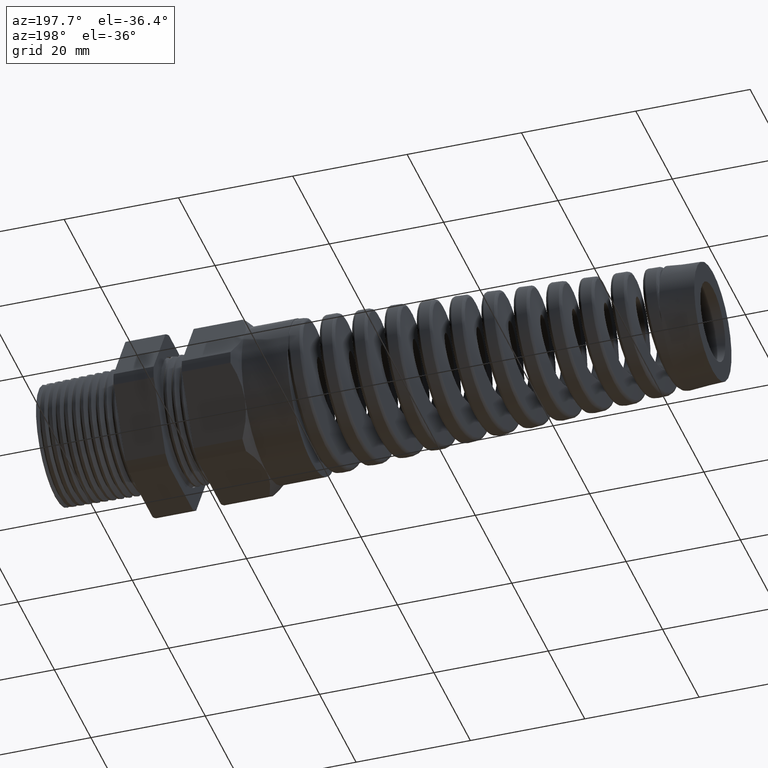
[diagram: clean part render]
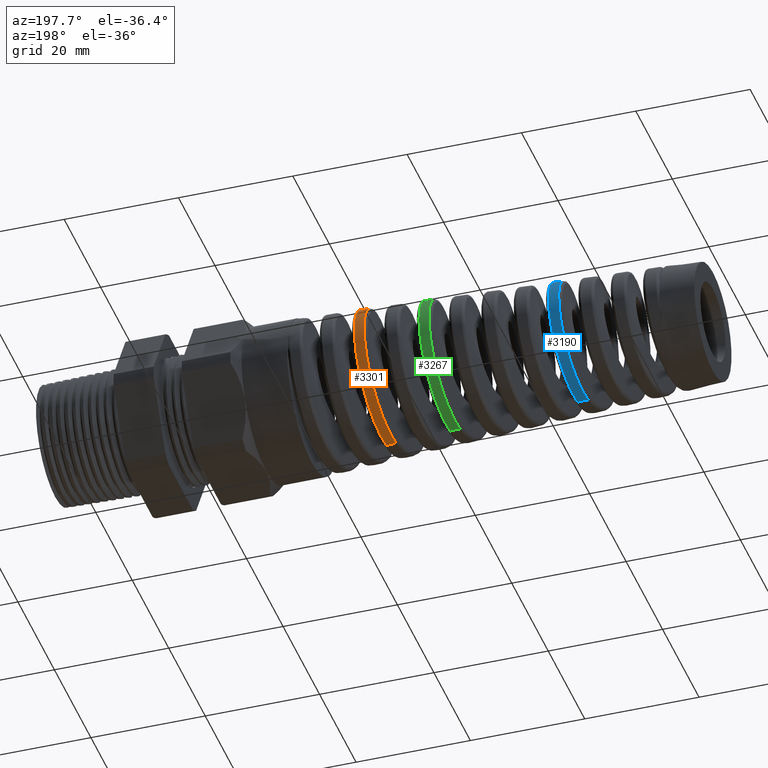
[diagram: same view with three faces highlighted in distinct colors, each labeled with its STEP entity id]
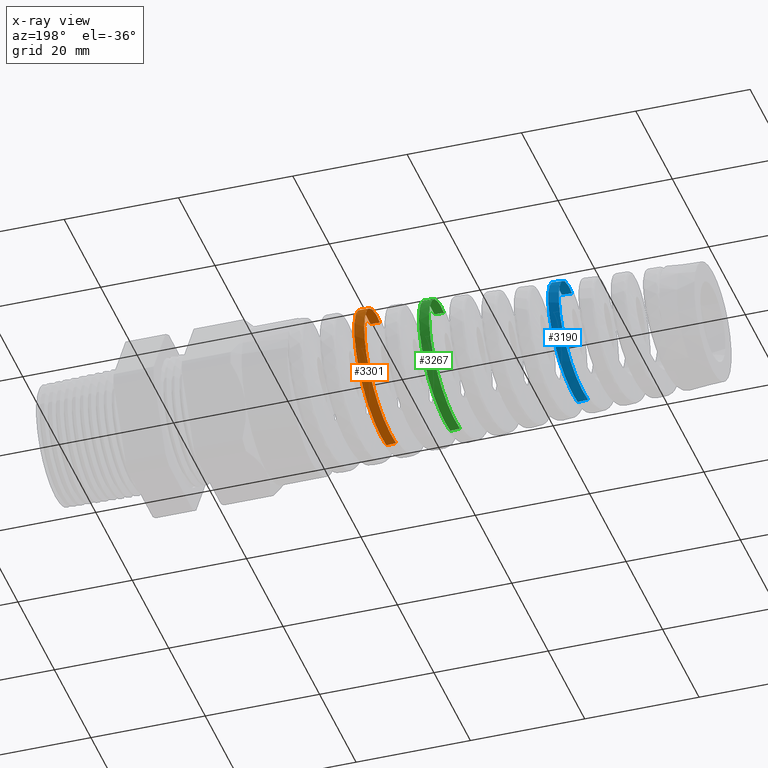
[diagram: x-ray of the same camera — body ghosted, the three highlighted faces saturated]
A machine part, auxiliary view with three faces highlighted in distinct colors.
The next image is the same camera in x-ray (body ghosted, the three faces saturated) — at least one of them is partly hidden behind the body in this view.
Their STEP definitions:

[orange] entity #3301 — the highlighted conical surface has half-angle 2.5 deg.
#955 = CARTESIAN_POINT ( 'NONE',  ( -1.891156353383405900, -5.175452935091780900E-017, 0.5089922599248590800 ) ) ;
#956 = CARTESIAN_POINT ( 'NONE',  ( -1.409999999999999900, 6.490628035480972400E-017, 0.5300000000000000300 ) ) ;
#957 = LINE ( 'NONE', #956, #959 ) ;
#958 = DIRECTION ( 'NONE',  ( 0.9990482215818576900, 5.341834311772759500E-018, 0.04361938736533629800 ) ) ;
#959 = VECTOR ( 'NONE', #958, 39.37007874015748100 ) ;
#1295 = CARTESIAN_POINT ( 'NONE',  ( -1.909392228201584100, 0.2537617635284805700, 0.4415440189842417800 ) ) ;
#1296 = CARTESIAN_POINT ( 'NONE',  ( -1.907137548000326100, 0.2246721151142339300, 0.4571582627879405800 ) ) ;
#1297 = CARTESIAN_POINT ( 'NONE',  ( -1.903705858030525100, 0.1785765676199349000, 0.4763434013326282000 ) ) ;
#1298 = CARTESIAN_POINT ( 'NONE',  ( -1.902552371242739000, 0.1627761550020042100, 0.4820228815427654000 ) ) ;
#1299 = CARTESIAN_POINT ( 'NONE',  ( -1.900268441955268200, 0.1310367780359272300, 0.4917040983939389700 ) ) ;
#1300 = CARTESIAN_POINT ( 'NONE',  ( -1.897994851410163200, 0.09899040409385305400, 0.4997853529560440400 ) ) ;
#1301 = CARTESIAN_POINT ( 'NONE',  ( -1.895723827727270500, 0.06634169155706655400, 0.5047209130302223700 ) ) ;
#1302 = CARTESIAN_POINT ( 'NONE',  ( -1.893446971663197600, 0.03338888186031298300, 0.5080657146556411000 ) ) ;
#1303 = CARTESIAN_POINT ( 'NONE',  ( -1.892300800425412700, 0.01668810481689767000, 0.5089422922878962300 ) ) ;
#1304 = CARTESIAN_POINT ( 'NONE',  ( -1.891156353383405900, -5.175452935091780900E-017, 0.5089922599248590800 ) ) ;
#1305 = B_SPLINE_CURVE_WITH_KNOTS ( 'NONE', 3,
 ( #1304, #1303, #1302, #1301, #1300, #1299, #1298, #1297, #1296, #1295, #1503, #1502, #1501, #1500, #1499, #1498, #1497, #1496, #1495, #1494, #1493, #1492, #1491, #1490, #1489, #1488, #1487, #1486, #1485, #1484, #1483, #1482, #1481, #1480, #1479, #1478, #1477, #1476, #1475, #1474, #1473, #1472, #1471, #1470, #1469, #1468, #1467, #1466, #1465, #1464 ),
 .UNSPECIFIED., .F., .F.,
 ( 4, 2, 1, 2, 2, 2, 2, 2, 2, 2, 2, 2, 2, 2, 2, 2, 2, 2, 2, 2, 1, 2, 2, 2, 2, 4 ),
 ( 0.1533644155813281600, 0.1546415483894706100, 0.1559186811976131000, 0.1571958140057555500, 0.1584729468138980100, 0.1610272124301829500, 0.1623043452383254000, 0.1635814780464678900, 0.1661357436627528300, 0.1674128764708952800, 0.1686900092790377700, 0.1712442748953227100, 0.1737985405116076500, 0.1750756733197501300, 0.1763528061278926100, 0.1789070717441775500, 0.1801842045523200400, 0.1814613373604624900, 0.1840156029767474300, 0.1852927357848899200, 0.1865698685930324000, 0.1878470014011748800, 0.1891241342093173400, 0.1916783998256023100, 0.1929555326337447600, 0.1942326654418872500 ),
 .UNSPECIFIED. ) ;
#1332 = CARTESIAN_POINT ( 'NONE',  ( -1.957891182963833500, 3.444522062021571500E-015, 0.5060785543405387200 ) ) ;
#1333 = CARTESIAN_POINT ( 'NONE',  ( -1.960197406821892100, 0.03323839107000847000, 0.5059778624323376700 ) ) ;
#1334 = CARTESIAN_POINT ( 'NONE',  ( -1.962472389388004500, 0.06594009672865840100, 0.5026355506731768900 ) ) ;
#1335 = CARTESIAN_POINT ( 'NONE',  ( -1.965886576023868200, 0.1142136811564466700, 0.4929370194459515900 ) ) ;
#1336 = CARTESIAN_POINT ( 'NONE',  ( -1.967025063570132300, 0.1301740922504973600, 0.4889176483376858100 ) ) ;
#1337 = CARTESIAN_POINT ( 'NONE',  ( -1.969316240007509300, 0.1618259625361217500, 0.4792671047892774800 ) ) ;
#1338 = CARTESIAN_POINT ( 'NONE',  ( -1.970470748699642200, 0.1775383152752786400, 0.4736161788811794600 ) ) ;
#1339 = CARTESIAN_POINT ( 'NONE',  ( -1.973899389998861900, 0.2232399274069468400, 0.4546003532774278700 ) ) ;
#1340 = CARTESIAN_POINT ( 'NONE',  ( -1.976164491650759900, 0.2521578200986751600, 0.4391007093472700200 ) ) ;
#1341 = CARTESIAN_POINT ( 'NONE',  ( -1.979598078541918700, 0.2932190840937394800, 0.4116440233081949400 ) ) ;
#1342 = CARTESIAN_POINT ( 'NONE',  ( -1.980753209242729100, 0.3065703677189486900, 0.4017414846001498600 ) ) ;
#1343 = CARTESIAN_POINT ( 'NONE',  ( -1.983062458500455300, 0.3322176641761090400, 0.3806720322523124400 ) ) ;
#1344 = CARTESIAN_POINT ( 'NONE',  ( -1.984208311195116300, 0.3444267373853804900, 0.3695861621984955500 ) ) ;
#1345 = CARTESIAN_POINT ( 'NONE',  ( -1.987631122042338800, 0.3792646601205188500, 0.3347249415940681800 ) ) ;
#1346 = CARTESIAN_POINT ( 'NONE',  ( -1.989895794061580000, 0.4001208108563980600, 0.3093610738848798800 ) ) ;
#1347 = CARTESIAN_POINT ( 'NONE',  ( -1.993344640446965200, 0.4277546659616510700, 0.2680513951709886400 ) ) ;
#1348 = CARTESIAN_POINT ( 'NONE',  ( -1.994501055018973000, 0.4363283642108298200, 0.2537507983697081000 ) ) ;
#1349 = CARTESIAN_POINT ( 'NONE',  ( -1.996792635473267900, 0.4518741287877705000, 0.2246791974572710500 ) ) ;
#1350 = CARTESIAN_POINT ( 'NONE',  ( -1.999075602208092000, 0.4659232955358401100, 0.1949875392929122100 ) ) ;
#1351 = CARTESIAN_POINT ( 'NONE',  ( -2.001362214043379800, 0.4770211219895039200, 0.1640746693345875300 ) ) ;
#1352 = CARTESIAN_POINT ( 'NONE',  ( -2.003659382927078800, 0.4866219006322440900, 0.1325430068813825400 ) ) ;
#1353 = CARTESIAN_POINT ( 'NONE',  ( -2.004819301166398800, 0.4906896028430181600, 0.1163794338908971200 ) ) ;
#1354 = CARTESIAN_POINT ( 'NONE',  ( -2.008277391355177200, 0.5004183456678663600, 0.06762794272403223300 ) ) ;
#1355 = CARTESIAN_POINT ( 'NONE',  ( -2.010546161276892000, 0.5036388068964324800, 0.03494615979482101900 ) ) ;
#1356 = CARTESIAN_POINT ( 'NONE',  ( -2.013972341108807700, 0.5036938740507336300, -0.01433556046850147800 ) ) ;
#1357 = CARTESIAN_POINT ( 'NONE',  ( -2.015118119603144900, 0.5029106277399098000, -0.03080629236762574500 ) ) ;
#1358 = CARTESIAN_POINT ( 'NONE',  ( -2.017429389881301400, 0.4996912970626686800, -0.06383658982578820100 ) ) ;
#1359 = CARTESIAN_POINT ( 'NONE',  ( -2.018587337962704600, 0.4972579823960661100, -0.08028638242846396200 ) ) ;
#1360 = CARTESIAN_POINT ( 'NONE',  ( -2.022034190861069300, 0.4876461986706140900, -0.1287420948534580300 ) ) ;
#1361 = CARTESIAN_POINT ( 'NONE',  ( -2.024316379609758100, 0.4781526487295509900, -0.1601484921112390500 ) ) ;
#1362 = CARTESIAN_POINT ( 'NONE',  ( -2.027765273678281900, 0.4592542722408096700, -0.2058997885187035800 ) ) ;
#1363 = CARTESIAN_POINT ( 'NONE',  ( -2.028926210548301200, 0.4521263974745147700, -0.2210009064388293300 ) ) ;
#1364 = CARTESIAN_POINT ( 'NONE',  ( -2.031229327375521100, 0.4365371834813467900, -0.2501875746432034000 ) ) ;
#1365 = CARTESIAN_POINT ( 'NONE',  ( -2.032373481381339900, 0.4280744333074457700, -0.2643032912575896100 ) ) ;
#1366 = CARTESIAN_POINT ( 'NONE',  ( -2.035803111972687200, 0.4007293005115141200, -0.3052499532103756800 ) ) ;
#1367 = CARTESIAN_POINT ( 'NONE',  ( -2.038086059012276700, 0.3799091382096155800, -0.3306940582457942900 ) ) ;
#1368 = CARTESIAN_POINT ( 'NONE',  ( -2.042735154432985500, 0.3328847187526206000, -0.3777211783045725200 ) ) ;
#1369 = CARTESIAN_POINT ( 'NONE',  ( -2.045030673491717600, 0.3073827150251279300, -0.3985874356314688100 ) ) ;
#1370 = CARTESIAN_POINT ( 'NONE',  ( -2.048465852539065800, 0.2664417426766294000, -0.4259184476083234800 ) ) ;
#1371 = CARTESIAN_POINT ( 'NONE',  ( -2.049611177554624000, 0.2523340090012786700, -0.4343718443853760700 ) ) ;
#1372 = CARTESIAN_POINT ( 'NONE',  ( -2.051915678758786200, 0.2231777336864105800, -0.4499355804508264300 ) ) ;
#1373 = CARTESIAN_POINT ( 'NONE',  ( -2.053079396430430600, 0.2080661443327625200, -0.4570640552816482300 ) ) ;
#1374 = CARTESIAN_POINT ( 'NONE',  ( -2.056537573777954500, 0.1622578849896144100, -0.4759604897260965600 ) ) ;
#1375 = CARTESIAN_POINT ( 'NONE',  ( -2.058820938572076400, 0.1308381094181615700, -0.4854267433747767600 ) ) ;
#1376 = CARTESIAN_POINT ( 'NONE',  ( -2.062278442906706500, 0.08240559364905936100, -0.4949780880612888500 ) ) ;
#1377 = CARTESIAN_POINT ( 'NONE',  ( -2.063439234618064300, 0.06599879691345132700, -0.4973857691895802200 ) ) ;
#1378 = CARTESIAN_POINT ( 'NONE',  ( -2.065766946366539300, 0.03292095297954639200, -0.5005624205247422000 ) ) ;
#1379 = CARTESIAN_POINT ( 'NONE',  ( -2.066920347883046000, 0.01643476039688198500, -0.5013182381956383700 ) ) ;
#1380 = CARTESIAN_POINT ( 'NONE',  ( -2.068069076670287400, 6.294760092770872300E-016, -0.5012680836136411700 ) ) ;
#1460 = DIRECTION ( 'NONE',  ( 0.9990482215818576900, 0.0000000000000000000, -0.04361938736533629800 ) ) ;
#1461 = VECTOR ( 'NONE', #1460, 39.37007874015748100 ) ;
#1462 = CARTESIAN_POINT ( 'NONE',  ( -1.409999999999999900, 0.0000000000000000000, -0.5300000000000000300 ) ) ;
#1463 = LINE ( 'NONE', #1462, #1461 ) ;
#1464 = CARTESIAN_POINT ( 'NONE',  ( -2.000995300407784900, 5.294217882625128000E-013, -0.5041965879296966800 ) ) ;
#1465 = CARTESIAN_POINT ( 'NONE',  ( -1.999845041215743100, 0.01655792423901184700, -0.5042468093305929600 ) ) ;
#1466 = CARTESIAN_POINT ( 'NONE',  ( -1.998684933167902200, 0.03325489193627798000, -0.5034766075283190200 ) ) ;
#1467 = CARTESIAN_POINT ( 'NONE',  ( -1.996367156091345600, 0.06648710039461115700, -0.5002760477924966800 ) ) ;
#1468 = CARTESIAN_POINT ( 'NONE',  ( -1.995218834698197800, 0.08289741433107505900, -0.4978650415627879400 ) ) ;
#1469 = CARTESIAN_POINT ( 'NONE',  ( -1.991787346804043500, 0.1315286871159792300, -0.4882744604292920700 ) ) ;
#1470 = CARTESIAN_POINT ( 'NONE',  ( -1.989516437646090800, 0.1631556108762982600, -0.4787597803264785300 ) ) ;
#1471 = CARTESIAN_POINT ( 'NONE',  ( -1.986057472079513200, 0.2093697361924708700, -0.4596893770097373900 ) ) ;
#1472 = CARTESIAN_POINT ( 'NONE',  ( -1.984898244597118400, 0.2245297484862839300, -0.4525312539976442100 ) ) ;
#1473 = CARTESIAN_POINT ( 'NONE',  ( -1.982601504239496900, 0.2537739516605826400, -0.4369189807808189200 ) ) ;
#1474 = CARTESIAN_POINT ( 'NONE',  ( -1.980313924312781200, 0.2821121664185204400, -0.4199446183598056200 ) ) ;
#1475 = CARTESIAN_POINT ( 'NONE',  ( -1.978025057391554500, 0.3086630390737732400, -0.4002855461192935100 ) ) ;
#1476 = CARTESIAN_POINT ( 'NONE',  ( -1.975727631316928300, 0.3343067073272799100, -0.3792647841645369100 ) ) ;
#1477 = CARTESIAN_POINT ( 'NONE',  ( -1.974568903837065700, 0.3467391383565448000, -0.3680061325241754100 ) ) ;
#1478 = CARTESIAN_POINT ( 'NONE',  ( -1.971115808316207500, 0.3820719628657232600, -0.3326598010696653600 ) ) ;
#1479 = CARTESIAN_POINT ( 'NONE',  ( -1.968849035688093200, 0.4029967861463194000, -0.3071111743428927600 ) ) ;
#1480 = CARTESIAN_POINT ( 'NONE',  ( -1.965424863590764100, 0.4305328570221470500, -0.2658894382035531500 ) ) ;
#1481 = CARTESIAN_POINT ( 'NONE',  ( -1.964279625602182800, 0.4390651044782282700, -0.2516622618495112900 ) ) ;
#1482 = CARTESIAN_POINT ( 'NONE',  ( -1.961969752783236300, 0.4547956781205690900, -0.2222048207581205100 ) ) ;
#1483 = CARTESIAN_POINT ( 'NONE',  ( -1.960814772633379600, 0.4619219203978131000, -0.2070955109227639000 ) ) ;
#1484 = CARTESIAN_POINT ( 'NONE',  ( -1.957376314953900300, 0.4808865874478927500, -0.1611915242855892200 ) ) ;
#1485 = CARTESIAN_POINT ( 'NONE',  ( -1.955104336439940100, 0.4904513470361130400, -0.1296091009604631900 ) ) ;
#1486 = CARTESIAN_POINT ( 'NONE',  ( -1.951669858527370000, 0.5001441793699090700, -0.08075828272911593500 ) ) ;
#1487 = CARTESIAN_POINT ( 'NONE',  ( -1.950513718646908100, 0.5025976695734901700, -0.06413909195947535600 ) ) ;
#1488 = CARTESIAN_POINT ( 'NONE',  ( -1.948221599571855500, 0.5058226933069185400, -0.03103241394614637500 ) ) ;
#1489 = CARTESIAN_POINT ( 'NONE',  ( -1.947082590915117500, 0.5066117162052519200, -0.01450344070007500600 ) ) ;
#1490 = CARTESIAN_POINT ( 'NONE',  ( -1.943668076370012000, 0.5065651922939514700, 0.03501080543686446000 ) ) ;
#1491 = CARTESIAN_POINT ( 'NONE',  ( -1.941394669869055200, 0.5033396011581065000, 0.06792408688973875000 ) ) ;
#1492 = CARTESIAN_POINT ( 'NONE',  ( -1.936770206581976300, 0.4902397093495316500, 0.1335445907492802100 ) ) ;
#1493 = CARTESIAN_POINT ( 'NONE',  ( -1.934495976204012100, 0.4805701453976575200, 0.1652032611907316400 ) ) ;
#1494 = CARTESIAN_POINT ( 'NONE',  ( -1.931088251488047900, 0.4616057826564037800, 0.2109354931606219100 ) ) ;
#1495 = CARTESIAN_POINT ( 'NONE',  ( -1.929951835760430800, 0.4545344159880879700, 0.2258903500594496300 ) ) ;
#1496 = CARTESIAN_POINT ( 'NONE',  ( -1.927664963336547000, 0.4388598954062845600, 0.2552083309703191400 ) ) ;
#1497 = CARTESIAN_POINT ( 'NONE',  ( -1.926510342802354200, 0.4302166758014486800, 0.2696175712921430900 ) ) ;
#1498 = CARTESIAN_POINT ( 'NONE',  ( -1.923079849540654000, 0.4025134858860642300, 0.3110346527060757200 ) ) ;
#1499 = CARTESIAN_POINT ( 'NONE',  ( -1.920814738369136700, 0.3815686685917067400, 0.3365373254244277100 ) ) ;
#1500 = CARTESIAN_POINT ( 'NONE',  ( -1.917389752419332000, 0.3464825924019497800, 0.3716613079301208700 ) ) ;
#1501 = CARTESIAN_POINT ( 'NONE',  ( -1.916240921065864000, 0.3341394309055356600, 0.3828701070719549600 ) ) ;
#1502 = CARTESIAN_POINT ( 'NONE',  ( -1.913938924236482200, 0.3083122893719538700, 0.4040845397602275700 ) ) ;
#1503 = CARTESIAN_POINT ( 'NONE',  ( -1.912799172233075500, 0.2949789355151592500, 0.4139718942970796500 ) ) ;
#1504 = B_SPLINE_CURVE_WITH_KNOTS ( 'NONE', 3,
 ( #1380, #1379, #1378, #1377, #1376, #1375, #1374, #1373, #1372, #1371, #1370, #1369, #1368, #1367, #1366, #1365, #1364, #1363, #1362, #1361, #1360, #1359, #1358, #1357, #1356, #1355, #1354, #1353, #1352, #1351, #1350, #1349, #1348, #1347, #1346, #1345, #1344, #1343, #1342, #1341, #1340, #1339, #1338, #1337, #1336, #1335, #1334, #1333, #1332 ),
 .UNSPECIFIED., .F., .F.,
 ( 4, 2, 2, 2, 2, 2, 2, 2, 2, 2, 2, 2, 2, 2, 2, 1, 2, 2, 2, 2, 2, 2, 2, 2, 4 ),
 ( 0.6550528623513959300, 0.6563257066026478800, 0.6575985508538999500, 0.6601442393564039800, 0.6614170836076559400, 0.6626899278589080100, 0.6652356163614120400, 0.6677813048639160700, 0.6690541491151680300, 0.6703269933664201000, 0.6728726818689241300, 0.6741455261201760900, 0.6754183703714281600, 0.6779640588739321800, 0.6792369031251841400, 0.6805097473764362100, 0.6817825916276881700, 0.6830554358789402400, 0.6856011243814441600, 0.6868739686326962300, 0.6881468128839481900, 0.6906925013864522200, 0.6919653456377042900, 0.6932381898889562500, 0.6957838783914602800 ),
 .UNSPECIFIED. ) ;
#1507 = CARTESIAN_POINT ( 'NONE',  ( -2.000995300407784900, 5.294217882625128000E-013, -0.5041965879296966800 ) ) ;
#1987 = CONICAL_SURFACE ( 'NONE', #2107, 0.5300000000000000300, 0.04363323129985853500 ) ;
#1988 = FACE_OUTER_BOUND ( 'NONE', #3118, .T. ) ;
#2104 = DIRECTION ( 'NONE',  ( 0.0000000000000000000, 0.0000000000000000000, -1.000000000000000000 ) ) ;
#2105 = DIRECTION ( 'NONE',  ( 1.000000000000000000, 0.0000000000000000000, 0.0000000000000000000 ) ) ;
#2106 = CARTESIAN_POINT ( 'NONE',  ( -1.409999999999999900, 0.0000000000000000000, 0.0000000000000000000 ) ) ;
#2107 = AXIS2_PLACEMENT_3D ( 'NONE', #2106, #2105, #2104 ) ;
#3118 = EDGE_LOOP ( 'NONE', ( #3119, #3398, #3174, #3176 ) ) ;
#3119 = ORIENTED_EDGE ( 'NONE', *, *, #3189, .T. ) ;
#3174 = ORIENTED_EDGE ( 'NONE', *, *, #3175, .T. ) ;
#3175 = EDGE_CURVE ( 'NONE', #3400, #3187, #1305, .T. ) ;
#3176 = ORIENTED_EDGE ( 'NONE', *, *, #3177, .F. ) ;
#3177 = EDGE_CURVE ( 'NONE', #3641, #3187, #1463, .T. ) ;
#3187 = VERTEX_POINT ( 'NONE', #1507 ) ;
#3189 = EDGE_CURVE ( 'NONE', #3641, #3642, #1504, .T. ) ;
#3301 = ADVANCED_FACE ( 'NONE', ( #1988 ), #1987, .T. ) ;
#3398 = ORIENTED_EDGE ( 'NONE', *, *, #3399, .T. ) ;
#3399 = EDGE_CURVE ( 'NONE', #3642, #3400, #957, .T. ) ;
#3400 = VERTEX_POINT ( 'NONE', #955 ) ;
#3641 = VERTEX_POINT ( 'NONE', #16321 ) ;
#3642 = VERTEX_POINT ( 'NONE', #16320 ) ;
#16320 = CARTESIAN_POINT ( 'NONE',  ( -1.957891182963833500, 3.444522062021571500E-015, 0.5060785543405387200 ) ) ;
#16321 = CARTESIAN_POINT ( 'NONE',  ( -2.068069076670287400, 6.294760092770872300E-016, -0.5012680836136411700 ) ) ;

[blue] entity #3190 — the highlighted conical surface has half-angle 2.5 deg.
#1505 = CONICAL_SURFACE ( 'NONE', #1567, 0.5300000000000000300, 0.04363323129985853500 ) ;
#1506 = FACE_OUTER_BOUND ( 'NONE', #3154, .T. ) ;
#1564 = DIRECTION ( 'NONE',  ( 0.0000000000000000000, 0.0000000000000000000, -1.000000000000000000 ) ) ;
#1565 = DIRECTION ( 'NONE',  ( 1.000000000000000000, 0.0000000000000000000, 0.0000000000000000000 ) ) ;
#1566 = CARTESIAN_POINT ( 'NONE',  ( -1.409999999999999900, 0.0000000000000000000, 0.0000000000000000000 ) ) ;
#1567 = AXIS2_PLACEMENT_3D ( 'NONE', #1566, #1565, #1564 ) ;
#1919 = DIRECTION ( 'NONE',  ( 0.9990482215818576900, 0.0000000000000000000, -0.04361938736533629800 ) ) ;
#1920 = VECTOR ( 'NONE', #1919, 39.37007874015748100 ) ;
#1921 = CARTESIAN_POINT ( 'NONE',  ( -1.409999999999999900, 0.0000000000000000000, -0.5300000000000000300 ) ) ;
#1922 = LINE ( 'NONE', #1921, #1920 ) ;
#1923 = CARTESIAN_POINT ( 'NONE',  ( -3.318995017384299000, 5.086010051436246700E-013, -0.4466514775333496100 ) ) ;
#1924 = CARTESIAN_POINT ( 'NONE',  ( -3.316695054154160900, 0.02933251421043338300, -0.4467518960965988800 ) ) ;
#1925 = CARTESIAN_POINT ( 'NONE',  ( -3.314366490996031100, 0.05910503900731378000, -0.4438960591108178600 ) ) ;
#1926 = CARTESIAN_POINT ( 'NONE',  ( -3.309788337585800800, 0.1166183217360560000, -0.4325690279077655200 ) ) ;
#1927 = CARTESIAN_POINT ( 'NONE',  ( -3.307515177330557800, 0.1446442277827983400, -0.4241393080925018300 ) ) ;
#1928 = CARTESIAN_POINT ( 'NONE',  ( -3.304055599934709000, 0.1855600333484806700, -0.4072662006441762900 ) ) ;
#1929 = CARTESIAN_POINT ( 'NONE',  ( -3.302892778249631300, 0.1990211664829635900, -0.4009151201077200700 ) ) ;
#1930 = CARTESIAN_POINT ( 'NONE',  ( -3.300591048090072600, 0.2249710902118779400, -0.3870662621905807700 ) ) ;
#1931 = CARTESIAN_POINT ( 'NONE',  ( -3.299445699233449800, 0.2375375881817893800, -0.3795398718940826700 ) ) ;
#1932 = CARTESIAN_POINT ( 'NONE',  ( -3.297157071424452900, 0.2618669350510192100, -0.3633039652088149700 ) ) ;
#1933 = CARTESIAN_POINT ( 'NONE',  ( -3.296014113524092300, 0.2736297867694618700, -0.3545944081016246800 ) ) ;
#1934 = CARTESIAN_POINT ( 'NONE',  ( -3.293721873693286300, 0.2963418074211062700, -0.3359785729176546500 ) ) ;
#1935 = CARTESIAN_POINT ( 'NONE',  ( -3.292566629393344900, 0.3073397238797768700, -0.3260224252019934800 ) ) ;
#1936 = CARTESIAN_POINT ( 'NONE',  ( -3.289108883691271000, 0.3387060401045628400, -0.2946486440909060200 ) ) ;
#1937 = CARTESIAN_POINT ( 'NONE',  ( -3.286838405996882300, 0.3572582897924859200, -0.2719881787020215800 ) ) ;
#1938 = CARTESIAN_POINT ( 'NONE',  ( -3.283411562849386700, 0.3816525613170602100, -0.2354643478370399600 ) ) ;
#2022 = B_SPLINE_CURVE_WITH_KNOTS ( 'NONE', 3,
 ( #2138, #2137, #2136, #2135, #2134, #2133, #2132, #2131, #2130, #2129, #2128, #2127, #2126, #2125, #2124, #2123, #2122, #2121, #2120, #2119, #2118, #2117, #2116, #2115, #2114, #2113, #2112, #2111, #2110, #2109, #2108, #1938, #1937, #1936, #1935, #1934, #1933, #1932, #1931, #1930, #1929, #1928, #1927, #1926, #1925, #1924, #1923 ),
 .UNSPECIFIED., .F., .F.,
 ( 4, 2, 2, 2, 2, 2, 2, 2, 1, 2, 2, 2, 2, 2, 2, 2, 2, 2, 2, 2, 2, 2, 2, 4 ),
 ( 0.6182058161148945600, 0.6204688877489688000, 0.6216004235660059800, 0.6227319593830431500, 0.6249950310171174000, 0.6272581026511917500, 0.6295211742852659900, 0.6306527101023031700, 0.6317842459193402400, 0.6329157817363774100, 0.6340473175534145900, 0.6363103891874888300, 0.6374419250045260100, 0.6385734608215631900, 0.6408365324556374300, 0.6419680682726746100, 0.6430996040897117800, 0.6453626757237860300, 0.6464942115408232000, 0.6476257473578603800, 0.6487572831748974500, 0.6498888189919346200, 0.6521518906260089800, 0.6544149622600832200 ),
 .UNSPECIFIED. ) ;
#2023 = CARTESIAN_POINT ( 'NONE',  ( -3.318995017384299000, 5.086010051436246700E-013, -0.4466514775333496100 ) ) ;
#2024 = CARTESIAN_POINT ( 'NONE',  ( -3.209163398026239700, 7.533378255966009400E-013, 0.4514468295956912700 ) ) ;
#2025 = CARTESIAN_POINT ( 'NONE',  ( -3.279901948676506400, -5.243479336734541100E-013, 0.4483583177743190600 ) ) ;
#2026 = CARTESIAN_POINT ( 'NONE',  ( -3.282181470492759400, 0.02913936782640416000, 0.4482587917024747900 ) ) ;
#2027 = CARTESIAN_POINT ( 'NONE',  ( -3.284449073418095600, 0.05805192067267116900, 0.4453458068688604400 ) ) ;
#2028 = CARTESIAN_POINT ( 'NONE',  ( -3.287888566883726800, 0.1010719468867653800, 0.4367047126793078800 ) ) ;
#2029 = CARTESIAN_POINT ( 'NONE',  ( -3.289046064054337300, 0.1154168593884361800, 0.4330825244603354600 ) ) ;
#2030 = CARTESIAN_POINT ( 'NONE',  ( -3.291336263067361500, 0.1434100509265754400, 0.4245297478918724200 ) ) ;
#2031 = CARTESIAN_POINT ( 'NONE',  ( -3.292473742079614000, 0.1571140117628626600, 0.4195945835774175200 ) ) ;
#2032 = CARTESIAN_POINT ( 'NONE',  ( -3.295882446029325200, 0.1973648991687020100, 0.4028544421451169000 ) ) ;
#2033 = CARTESIAN_POINT ( 'NONE',  ( -3.298151268673687600, 0.2230735019784710900, 0.3891240586236123200 ) ) ;
#2034 = CARTESIAN_POINT ( 'NONE',  ( -3.302770368370137700, 0.2720458566727292400, 0.3563564080413324000 ) ) ;
#2035 = CARTESIAN_POINT ( 'NONE',  ( -3.305047523071132300, 0.2945272325589675700, 0.3378466312803657400 ) ) ;
#2036 = CARTESIAN_POINT ( 'NONE',  ( -3.308471474967146900, 0.3253571444816832900, 0.3070213515221298400 ) ) ;
#2037 = CARTESIAN_POINT ( 'NONE',  ( -3.309613354317469700, 0.3351482937812280700, 0.2962323975508703900 ) ) ;
#2038 = CARTESIAN_POINT ( 'NONE',  ( -3.311909030971096300, 0.3537364969988354100, 0.2736035339613991900 ) ) ;
#2039 = CARTESIAN_POINT ( 'NONE',  ( -3.313066556204188600, 0.3625513387400153800, 0.2617233362833567600 ) ) ;
#2040 = CARTESIAN_POINT ( 'NONE',  ( -3.316503024012209500, 0.3869223280745071000, 0.2252572672707485700 ) ) ;
#2041 = CARTESIAN_POINT ( 'NONE',  ( -3.318769854418618600, 0.4006271993711607000, 0.1996344599252843900 ) ) ;
#2042 = CARTESIAN_POINT ( 'NONE',  ( -3.322204816131416800, 0.4174003937042742900, 0.1592536337578177900 ) ) ;
#2043 = CARTESIAN_POINT ( 'NONE',  ( -3.323359177559300100, 0.4223698939433361300, 0.1454212890070335800 ) ) ;
#2044 = CARTESIAN_POINT ( 'NONE',  ( -3.325673610411514300, 0.4309283077161477600, 0.1172785248250668000 ) ) ;
#2045 = CARTESIAN_POINT ( 'NONE',  ( -3.326822533568815300, 0.4344805255704037900, 0.1031057655988143900 ) ) ;
#2046 = CARTESIAN_POINT ( 'NONE',  ( -3.330257681996935400, 0.4430239354085680500, 0.06029379594196149200 ) ) ;
#2047 = CARTESIAN_POINT ( 'NONE',  ( -3.332528865662428800, 0.4459218638402948600, 0.03136338882831914800 ) ) ;
#2048 = CARTESIAN_POINT ( 'NONE',  ( -3.335982238948583600, 0.4459721665074437000, -0.01262374925986920100 ) ) ;
#2049 = CARTESIAN_POINT ( 'NONE',  ( -3.337141198847800400, 0.4452570429534545800, -0.02738339054553694900 ) ) ;
#2050 = CARTESIAN_POINT ( 'NONE',  ( -3.339436484768842900, 0.4424110866901603300, -0.05645141111329808600 ) ) ;
#2051 = CARTESIAN_POINT ( 'NONE',  ( -3.341722100838157700, 0.4381545435398212000, -0.08523363797618713200 ) ) ;
#2052 = CARTESIAN_POINT ( 'NONE',  ( -3.344011009414726800, 0.4311202870198796400, -0.1134512801426601500 ) ) ;
#2053 = CARTESIAN_POINT ( 'NONE',  ( -3.346311571028264700, 0.4226789480029329300, -0.1413821195498122200 ) ) ;
#2054 = CARTESIAN_POINT ( 'NONE',  ( -3.347473556477188300, 0.4177251433348410600, -0.1552727726458326400 ) ) ;
#2055 = CARTESIAN_POINT ( 'NONE',  ( -3.350946033039945400, 0.4008860340408007000, -0.1959744954984042900 ) ) ;
#2056 = CARTESIAN_POINT ( 'NONE',  ( -3.353222118206871500, 0.3871630882518659100, -0.2216208464520031100 ) ) ;
#2057 = CARTESIAN_POINT ( 'NONE',  ( -3.356654835238533300, 0.3629375725099323000, -0.2579133473207376200 ) ) ;
#2058 = CARTESIAN_POINT ( 'NONE',  ( -3.357802124962194800, 0.3542511989969197600, -0.2696454143101849100 ) ) ;
#2059 = CARTESIAN_POINT ( 'NONE',  ( -3.360115543457305800, 0.3356198888697464200, -0.2923559049156782000 ) ) ;
#2060 = CARTESIAN_POINT ( 'NONE',  ( -3.361275925198624400, 0.3257157603353133500, -0.3032719816415084300 ) ) ;
#2061 = CARTESIAN_POINT ( 'NONE',  ( -3.364728383724704000, 0.2947560921063575000, -0.3341971019109119000 ) ) ;
#2062 = CARTESIAN_POINT ( 'NONE',  ( -3.367014874854020100, 0.2722891017236155300, -0.3526205109844496300 ) ) ;
#2063 = CARTESIAN_POINT ( 'NONE',  ( -3.370476060707643400, 0.2358375576030493100, -0.3769465978657730600 ) ) ;
#2064 = CARTESIAN_POINT ( 'NONE',  ( -3.371640737883571800, 0.2231509134736944200, -0.3845360688912447000 ) ) ;
#2065 = CARTESIAN_POINT ( 'NONE',  ( -3.373951750604174700, 0.1972792122671131200, -0.3983159170163564400 ) ) ;
#2066 = CARTESIAN_POINT ( 'NONE',  ( -3.375099172860224900, 0.1840883694988316700, -0.4045220667232515800 ) ) ;
#2067 = CARTESIAN_POINT ( 'NONE',  ( -3.378536791413550200, 0.1437706561079358500, -0.4211379488869605400 ) ) ;
#2068 = CARTESIAN_POINT ( 'NONE',  ( -3.380822445213787400, 0.1159058745878346100, -0.4295646488940428300 ) ) ;
#2069 = CARTESIAN_POINT ( 'NONE',  ( -3.385477627773635100, 0.05813415386873571600, -0.4409081022254181500 ) ) ;
#2070 = CARTESIAN_POINT ( 'NONE',  ( -3.387780662639374700, 0.02906027029551541000, -0.4436482314029425200 ) ) ;
#2071 = CARTESIAN_POINT ( 'NONE',  ( -3.390079976267699600, 1.789123259466410800E-016, -0.4435478412018874500 ) ) ;
#2072 = CARTESIAN_POINT ( 'NONE',  ( -3.279901948676506400, -5.243479336734541100E-013, 0.4483583177743190600 ) ) ;
#2073 = B_SPLINE_CURVE_WITH_KNOTS ( 'NONE', 3,
 ( #2071, #2070, #2069, #2068, #2067, #2066, #2065, #2064, #2063, #2062, #2061, #2060, #2059, #2058, #2057, #2056, #2055, #2054, #2053, #2052, #2051, #2050, #2049, #2048, #2047, #2046, #2045, #2044, #2043, #2042, #2041, #2040, #2039, #2038, #2037, #2036, #2035, #2034, #2033, #2032, #2031, #2030, #2029, #2028, #2027, #2026, #2025 ),
 .UNSPECIFIED., .F., .F.,
 ( 4, 2, 2, 2, 2, 2, 2, 2, 2, 2, 1, 2, 2, 2, 2, 2, 2, 2, 2, 2, 2, 2, 2, 4 ),
 ( 0.1967222091148974900, 0.1989754848577598400, 0.2012287606006221700, 0.2023553984720533300, 0.2034820363434845200, 0.2057353120863468500, 0.2068619499577780400, 0.2079885878292092000, 0.2102418635720715300, 0.2113685014435027200, 0.2124951393149338800, 0.2136217771863650500, 0.2147484150577962400, 0.2170016908006585600, 0.2181283286720897600, 0.2192549665435209200, 0.2215082422863832700, 0.2226348801578144400, 0.2237615180292456000, 0.2260147937721079500, 0.2282680695149703100, 0.2293947073864014700, 0.2305213452578326300, 0.2327746210006949900 ),
 .UNSPECIFIED. ) ;
#2074 = CARTESIAN_POINT ( 'NONE',  ( -3.390079976267699600, 1.789123259466410800E-016, -0.4435478412018874500 ) ) ;
#2108 = CARTESIAN_POINT ( 'NONE',  ( -3.282265946504458100, 0.3892075076613126800, -0.2228644839399530100 ) ) ;
#2109 = CARTESIAN_POINT ( 'NONE',  ( -3.279957336130058000, 0.4031312673315432500, -0.1967907986133640700 ) ) ;
#2110 = CARTESIAN_POINT ( 'NONE',  ( -3.278798524393161400, 0.4094666784494798200, -0.1833607507082719000 ) ) ;
#2111 = CARTESIAN_POINT ( 'NONE',  ( -3.275357909329721400, 0.4262884375311354900, -0.1426333077785390300 ) ) ;
#2112 = CARTESIAN_POINT ( 'NONE',  ( -3.273091683381220900, 0.4347582015525099900, -0.1146368374439962200 ) ) ;
#2113 = CARTESIAN_POINT ( 'NONE',  ( -3.269661401923220600, 0.4433368750762204900, -0.07137806461946578900 ) ) ;
#2114 = CARTESIAN_POINT ( 'NONE',  ( -3.268506121821495900, 0.4455095801100508700, -0.05666327404242821300 ) ) ;
#2115 = CARTESIAN_POINT ( 'NONE',  ( -3.266209294152677200, 0.4483697940808907300, -0.02727772777209581300 ) ) ;
#2116 = CARTESIAN_POINT ( 'NONE',  ( -3.265068140868281300, 0.4490673055393650200, -0.01261386907400063700 ) ) ;
#2117 = CARTESIAN_POINT ( 'NONE',  ( -3.261648880977305000, 0.4490189558369857000, 0.03129187664150759300 ) ) ;
#2118 = CARTESIAN_POINT ( 'NONE',  ( -3.259374467685743700, 0.4461528081670036400, 0.06044872254073750700 ) ) ;
#2119 = CARTESIAN_POINT ( 'NONE',  ( -3.255913825307511300, 0.4374562431830238400, 0.1040031816965408300 ) ) ;
#2120 = CARTESIAN_POINT ( 'NONE',  ( -3.254763460502415400, 0.4338409903745486500, 0.1183550308400812100 ) ) ;
#2121 = CARTESIAN_POINT ( 'NONE',  ( -3.252482595778180700, 0.4252923690697282300, 0.1464303481046953000 ) ) ;
#2122 = CARTESIAN_POINT ( 'NONE',  ( -3.250213153772449000, 0.4154065323694111100, 0.1739751536717848200 ) ) ;
#2123 = CARTESIAN_POINT ( 'NONE',  ( -3.247941274826287500, 0.4028742199306695200, 0.2004679227545142200 ) ) ;
#2124 = CARTESIAN_POINT ( 'NONE',  ( -3.245655864413233200, 0.3889947369350299500, 0.2264241273472568900 ) ) ;
#2125 = CARTESIAN_POINT ( 'NONE',  ( -3.244500449150892400, 0.3813352719497458100, 0.2391951369365604700 ) ) ;
#2126 = CARTESIAN_POINT ( 'NONE',  ( -3.241062815163640900, 0.3567457724902694000, 0.2759535579510305500 ) ) ;
#2127 = CARTESIAN_POINT ( 'NONE',  ( -3.238795475160007000, 0.3381695481205849200, 0.2985608348863824100 ) ) ;
#2128 = CARTESIAN_POINT ( 'NONE',  ( -3.234236532065104100, 0.2967303427687458300, 0.3400405308456798700 ) ) ;
#2129 = CARTESIAN_POINT ( 'NONE',  ( -3.231929278645268200, 0.2736204061712901300, 0.3590259951665557000 ) ) ;
#2130 = CARTESIAN_POINT ( 'NONE',  ( -3.227385441758067400, 0.2248699578239526400, 0.3916376671970469600 ) ) ;
#2131 = CARTESIAN_POINT ( 'NONE',  ( -3.225129840228436500, 0.1990896128344537300, 0.4054710947949997600 ) ) ;
#2132 = CARTESIAN_POINT ( 'NONE',  ( -3.221700839712637900, 0.1582877358341476200, 0.4224598615773484400 ) ) ;
#2133 = CARTESIAN_POINT ( 'NONE',  ( -3.220545882251424400, 0.1442726415045180700, 0.4275020643000506100 ) ) ;
#2134 = CARTESIAN_POINT ( 'NONE',  ( -3.218258998527627300, 0.1161046039385076900, 0.4360990637610300800 ) ) ;
#2135 = CARTESIAN_POINT ( 'NONE',  ( -3.217121882281138900, 0.1018916330567185000, 0.4396847319147224000 ) ) ;
#2136 = CARTESIAN_POINT ( 'NONE',  ( -3.213717114621676100, 0.05887458556836792900, 0.4483461966688813700 ) ) ;
#2137 = CARTESIAN_POINT ( 'NONE',  ( -3.211455005878386200, 0.02963902405410991800, 0.4513467758360404900 ) ) ;
#2138 = CARTESIAN_POINT ( 'NONE',  ( -3.209163398026239700, 7.533378255966009400E-013, 0.4514468295956912700 ) ) ;
#2515 = DIRECTION ( 'NONE',  ( 0.9990482215818576900, 5.341834311772759500E-018, 0.04361938736533629800 ) ) ;
#2516 = LINE ( 'NONE', #2518, #2517 ) ;
#2517 = VECTOR ( 'NONE', #2515, 39.37007874015748100 ) ;
#2518 = CARTESIAN_POINT ( 'NONE',  ( -1.409999999999999900, 6.490628035480972400E-017, 0.5300000000000000300 ) ) ;
#3120 = ORIENTED_EDGE ( 'NONE', *, *, #3121, .T. ) ;
#3121 = EDGE_CURVE ( 'NONE', #3286, #3287, #2516, .T. ) ;
#3122 = ORIENTED_EDGE ( 'NONE', *, *, #3288, .T. ) ;
#3154 = EDGE_LOOP ( 'NONE', ( #3155, #3120, #3122, #3290 ) ) ;
#3155 = ORIENTED_EDGE ( 'NONE', *, *, #3284, .T. ) ;
#3190 = ADVANCED_FACE ( 'NONE', ( #1506 ), #1505, .T. ) ;
#3284 = EDGE_CURVE ( 'NONE', #3285, #3286, #2073, .T. ) ;
#3285 = VERTEX_POINT ( 'NONE', #2074 ) ;
#3286 = VERTEX_POINT ( 'NONE', #2072 ) ;
#3287 = VERTEX_POINT ( 'NONE', #2024 ) ;
#3288 = EDGE_CURVE ( 'NONE', #3287, #3289, #2022, .T. ) ;
#3289 = VERTEX_POINT ( 'NONE', #2023 ) ;
#3290 = ORIENTED_EDGE ( 'NONE', *, *, #3291, .F. ) ;
#3291 = EDGE_CURVE ( 'NONE', #3285, #3289, #1922, .T. ) ;

[green] entity #3267 — the highlighted conical surface has half-angle 2.5 deg.
#1119 = CARTESIAN_POINT ( 'NONE',  ( -2.440322830297450000, -4.066554948638753100E-015, -0.4850151337290462000 ) ) ;
#1120 = CARTESIAN_POINT ( 'NONE',  ( -2.439179557225120500, 0.01588014342566104000, -0.4850650501093861600 ) ) ;
#1121 = CARTESIAN_POINT ( 'NONE',  ( -2.438036041122941400, 0.03177953158850518200, -0.4843369872067778700 ) ) ;
#1122 = CARTESIAN_POINT ( 'NONE',  ( -2.435735344568621800, 0.06361664053463257600, -0.4812926854882004200 ) ) ;
#1123 = CARTESIAN_POINT ( 'NONE',  ( -2.434573382760256700, 0.07961837580980729600, -0.4789569744520735800 ) ) ;
#1124 = CARTESIAN_POINT ( 'NONE',  ( -2.431120602085759000, 0.1266786815620450900, -0.4696856204777094000 ) ) ;
#1125 = CARTESIAN_POINT ( 'NONE',  ( -2.428841784554366600, 0.1570827744711478800, -0.4605057111017348800 ) ) ;
#1126 = CARTESIAN_POINT ( 'NONE',  ( -2.425395816478702800, 0.2012486743402412100, -0.4422949839183925000 ) ) ;
#1127 = CARTESIAN_POINT ( 'NONE',  ( -2.424240033836405000, 0.2157623099343256900, -0.4354613872301765800 ) ) ;
#1128 = CARTESIAN_POINT ( 'NONE',  ( -2.421923025039310700, 0.2441445573047684700, -0.4203233428767525500 ) ) ;
#1129 = CARTESIAN_POINT ( 'NONE',  ( -2.420775879261627400, 0.2578471432690545600, -0.4121118265891068300 ) ) ;
#1130 = CARTESIAN_POINT ( 'NONE',  ( -2.417347102243754300, 0.2975362216891306900, -0.3856139410223175500 ) ) ;
#1187 = CARTESIAN_POINT ( 'NONE',  ( -2.415078260906309300, 0.3221173817176623500, -0.3654817358251386500 ) ) ;
#1188 = CARTESIAN_POINT ( 'NONE',  ( -2.411624722085443700, 0.3561096533231082900, -0.3315104979953454900 ) ) ;
#1189 = CARTESIAN_POINT ( 'NONE',  ( -2.410464383051874800, 0.3669557895632742900, -0.3195375424440485800 ) ) ;
#1190 = CARTESIAN_POINT ( 'NONE',  ( -2.408166957971741100, 0.3871988650699730300, -0.2948481042101081500 ) ) ;
#1191 = CARTESIAN_POINT ( 'NONE',  ( -2.405879826823754000, 0.4061251006997397300, -0.2692917499279670100 ) ) ;
#1192 = CARTESIAN_POINT ( 'NONE',  ( -2.403594578213066300, 0.4224603917174803400, -0.2420312864051917300 ) ) ;
#1193 = CARTESIAN_POINT ( 'NONE',  ( -2.401302825536713500, 0.4374840987865256700, -0.2139088163437037100 ) ) ;
#1194 = CARTESIAN_POINT ( 'NONE',  ( -2.400148295655384800, 0.4443691429618344400, -0.1993437777203795100 ) ) ;
#1195 = CARTESIAN_POINT ( 'NONE',  ( -2.396695305545668600, 0.4627589935250965300, -0.1548408136281918800 ) ) ;
#1196 = CARTESIAN_POINT ( 'NONE',  ( -2.394429145884435300, 0.4719343427854499900, -0.1244022280346461200 ) ) ;
#1197 = CARTESIAN_POINT ( 'NONE',  ( -2.391008317830858300, 0.4812061053514571400, -0.07762875272536447200 ) ) ;
#1198 = CARTESIAN_POINT ( 'NONE',  ( -2.389864619688381300, 0.4835427582015580100, -0.06185030736025098200 ) ) ;
#1199 = CARTESIAN_POINT ( 'NONE',  ( -2.387559193485445000, 0.4866647847925467100, -0.02990887537485323000 ) ) ;
#1200 = CARTESIAN_POINT ( 'NONE',  ( -2.386402124185082100, 0.4874344912390130000, -0.01381049246718310400 ) ) ;
#1201 = CARTESIAN_POINT ( 'NONE',  ( -2.382964554542413200, 0.4873751813363504400, 0.03402229086419713400 ) ) ;
#1202 = CARTESIAN_POINT ( 'NONE',  ( -2.380697668743204000, 0.4842361292301725100, 0.06561998194417449600 ) ) ;
#1203 = CARTESIAN_POINT ( 'NONE',  ( -2.377270826411412400, 0.4748676990565549000, 0.1125746577212462800 ) ) ;
#1204 = CARTESIAN_POINT ( 'NONE',  ( -2.376117024129364500, 0.4709338454206097300, 0.1282376824774795500 ) ) ;
#1205 = CARTESIAN_POINT ( 'NONE',  ( -2.373823973771746100, 0.4615984258966035500, 0.1588967299333344800 ) ) ;
#1206 = CARTESIAN_POINT ( 'NONE',  ( -2.372684824369942500, 0.4562086872202948400, 0.1738938973819330300 ) ) ;
#1207 = CARTESIAN_POINT ( 'NONE',  ( -2.369271288975741500, 0.4379294668494271300, 0.2179127475341298700 ) ) ;
#1208 = CARTESIAN_POINT ( 'NONE',  ( -2.367000335284060500, 0.4229502773444698300, 0.2459710990601493000 ) ) ;
#1209 = CARTESIAN_POINT ( 'NONE',  ( -2.363541361043675100, 0.3961477731415131200, 0.2860561016605452400 ) ) ;
#1210 = CARTESIAN_POINT ( 'NONE',  ( -2.362390741712618900, 0.3865671062892506700, 0.2989506459554620600 ) ) ;
#1211 = CARTESIAN_POINT ( 'NONE',  ( -2.360110524728474200, 0.3663429521436668000, 0.3235671768758875400 ) ) ;
#1212 = CARTESIAN_POINT ( 'NONE',  ( -2.357842597375755300, 0.3449981708540722500, 0.3470983087808484600 ) ) ;
#1213 = CARTESIAN_POINT ( 'NONE',  ( -2.355573576130282300, 0.3214359664975438600, 0.3684791815347310300 ) ) ;
#1214 = CARTESIAN_POINT ( 'NONE',  ( -2.353291315357767900, 0.2967451386065572700, 0.3887643465559947300 ) ) ;
#1215 = CARTESIAN_POINT ( 'NONE',  ( -2.352137676631923300, 0.2837641730468104500, 0.3984009868498059600 ) ) ;
#1216 = CARTESIAN_POINT ( 'NONE',  ( -2.348705305956587900, 0.2438530906955783400, 0.4250834547241849100 ) ) ;
#1217 = CARTESIAN_POINT ( 'NONE',  ( -2.346441058586168800, 0.2158431244412608600, 0.4400650510454621200 ) ) ;
#1218 = CARTESIAN_POINT ( 'NONE',  ( -2.341883560715242000, 0.1570713240724750900, 0.4645091976157567600 ) ) ;
#1219 = CARTESIAN_POINT ( 'NONE',  ( -2.339575177771263900, 0.1260158006520289400, 0.4739825914552728800 ) ) ;
#1220 = CARTESIAN_POINT ( 'NONE',  ( -2.335035254457572300, 0.06358731361833394600, 0.4865081628068920200 ) ) ;
#1221 = CARTESIAN_POINT ( 'NONE',  ( -2.332782972175571500, 0.03198739122636464600, 0.4897104253349275300 ) ) ;
#1222 = CARTESIAN_POINT ( 'NONE',  ( -2.330500011800342300, -4.982185133609467100E-013, 0.4898101015375003200 ) ) ;
#1223 = B_SPLINE_CURVE_WITH_KNOTS ( 'NONE', 3,
 ( #1222, #1221, #1220, #1219, #1218, #1217, #1216, #1215, #1214, #1213, #1212, #1211, #1210, #1209, #1208, #1207, #1206, #1205, #1204, #1203, #1202, #1201, #1200, #1199, #1198, #1197, #1196, #1195, #1194, #1193, #1192, #1191, #1190, #1189, #1188, #1187, #1130, #1129, #1128, #1127, #1126, #1125, #1124, #1123, #1122, #1121, #1120, #1119 ),
 .UNSPECIFIED., .F., .F.,
 ( 4, 2, 2, 2, 2, 1, 2, 2, 2, 2, 2, 2, 2, 2, 2, 2, 1, 2, 2, 2, 2, 2, 2, 2, 4 ),
 ( 0.3145228557274989400, 0.3169804562296320600, 0.3194380567317651700, 0.3218956572338983500, 0.3231244574849648800, 0.3243532577360314600, 0.3255820579870979900, 0.3268108582381645800, 0.3292684587402977000, 0.3304972589913642300, 0.3317260592424308200, 0.3341836597445639300, 0.3354124599956304600, 0.3366412602466970500, 0.3390988607488301700, 0.3403276609998967500, 0.3415564612509632800, 0.3427852615020298100, 0.3440140617530964000, 0.3464716622552295200, 0.3477004625062960500, 0.3489292627573626300, 0.3513868632594957500, 0.3526156635105622800, 0.3538444637616288700 ),
 .UNSPECIFIED. ) ;
#1558 = CARTESIAN_POINT ( 'NONE',  ( -2.440322830297450000, -4.066554948638753100E-015, -0.4850151337290462000 ) ) ;
#1559 = CARTESIAN_POINT ( 'NONE',  ( -2.330500011800342300, -4.982185133609467100E-013, 0.4898101015375003200 ) ) ;
#1560 = DIRECTION ( 'NONE',  ( 0.9990482215818576900, 5.341834311772759500E-018, 0.04361938736533629800 ) ) ;
#1561 = VECTOR ( 'NONE', #1560, 39.37007874015748100 ) ;
#1562 = CARTESIAN_POINT ( 'NONE',  ( -1.409999999999999900, 6.490628035480972400E-017, 0.5300000000000000300 ) ) ;
#1563 = LINE ( 'NONE', #1562, #1561 ) ;
#1568 = CARTESIAN_POINT ( 'NONE',  ( -2.398565462086168900, 3.868214671924838500E-015, 0.4868382997985286600 ) ) ;
#1624 = DIRECTION ( 'NONE',  ( 0.9990482215818576900, 0.0000000000000000000, -0.04361938736533629800 ) ) ;
#1625 = VECTOR ( 'NONE', #1624, 39.37007874015748100 ) ;
#1626 = CARTESIAN_POINT ( 'NONE',  ( -1.409999999999999900, 0.0000000000000000000, -0.5300000000000000300 ) ) ;
#1627 = LINE ( 'NONE', #1626, #1625 ) ;
#1995 = CARTESIAN_POINT ( 'NONE',  ( -2.454654300151625400, 0.4844540247948946300, -0.01377691529484968500 ) ) ;
#1996 = CARTESIAN_POINT ( 'NONE',  ( -2.455815136182187600, 0.4836805822376969400, -0.02983031366623194500 ) ) ;
#1997 = CARTESIAN_POINT ( 'NONE',  ( -2.458114016174231000, 0.4805832708371178800, -0.06147565151407435900 ) ) ;
#1998 = CARTESIAN_POINT ( 'NONE',  ( -2.459256280792965200, 0.4782666999704656700, -0.07712716769055771900 ) ) ;
#1999 = CARTESIAN_POINT ( 'NONE',  ( -2.462680933923798500, 0.4690617023666184300, -0.1235776479762476500 ) ) ;
#2000 = CARTESIAN_POINT ( 'NONE',  ( -2.464963767342765300, 0.4599274352634956700, -0.1539082085141247300 ) ) ;
#2001 = CARTESIAN_POINT ( 'NONE',  ( -2.469607709744881000, 0.4354733718574429500, -0.2130439388279716200 ) ) ;
#2002 = CARTESIAN_POINT ( 'NONE',  ( -2.471896932744126900, 0.4205419142245816500, -0.2409269357423024800 ) ) ;
#2003 = CARTESIAN_POINT ( 'NONE',  ( -2.475331712788255300, 0.3942462151745120300, -0.2803185047919062300 ) ) ;
#2004 = CARTESIAN_POINT ( 'NONE',  ( -2.476477104200032600, 0.3848264267138090700, -0.2930405161989267400 ) ) ;
#2005 = CARTESIAN_POINT ( 'NONE',  ( -2.478782045460759900, 0.3646466931781917100, -0.3176470052578269600 ) ) ;
#2006 = CARTESIAN_POINT ( 'NONE',  ( -2.479944129102372900, 0.3538553705313632300, -0.3295497258755754100 ) ) ;
#2007 = CARTESIAN_POINT ( 'NONE',  ( -2.483395226338291500, 0.3201630392534980400, -0.3632117127823679700 ) ) ;
#2008 = CARTESIAN_POINT ( 'NONE',  ( -2.485674678137735200, 0.2957518186722835600, -0.3832194137123506900 ) ) ;
#2009 = CARTESIAN_POINT ( 'NONE',  ( -2.489129731934498500, 0.2562329119811993000, -0.4096006335366939000 ) ) ;
#2010 = CARTESIAN_POINT ( 'NONE',  ( -2.490292070106969300, 0.2425136845932677800, -0.4178158729385946200 ) ) ;
#2011 = CARTESIAN_POINT ( 'NONE',  ( -2.492615576810455200, 0.2143364180468260700, -0.4328336141843736100 ) ) ;
#2012 = CARTESIAN_POINT ( 'NONE',  ( -2.493768284611978200, 0.1999829630735562900, -0.4395885907597605300 ) ) ;
#2013 = CARTESIAN_POINT ( 'NONE',  ( -2.497212099303793400, 0.1561526470230296700, -0.4576589780198768700 ) ) ;
#2014 = CARTESIAN_POINT ( 'NONE',  ( -2.499491327166465800, 0.1259132773793284800, -0.4668005535344511000 ) ) ;
#2015 = CARTESIAN_POINT ( 'NONE',  ( -2.502963521762355400, 0.07898940815425327400, -0.4760346300998248800 ) ) ;
#2016 = CARTESIAN_POINT ( 'NONE',  ( -2.504126981854538900, 0.06312322239079389000, -0.4783429231118573900 ) ) ;
#2017 = CARTESIAN_POINT ( 'NONE',  ( -2.506432909717035700, 0.03156074388121979400, -0.4813557126995095500 ) ) ;
#2018 = CARTESIAN_POINT ( 'NONE',  ( -2.507581628978772200, 0.01577995785726467700, -0.4820785511597003300 ) ) ;
#2019 = CARTESIAN_POINT ( 'NONE',  ( -2.508731368516807800, 7.792814345622864400E-013, -0.4820283524473960000 ) ) ;
#2020 = B_SPLINE_CURVE_WITH_KNOTS ( 'NONE', 3,
 ( #2019, #2018, #2017, #2016, #2015, #2014, #2013, #2012, #2011, #2010, #2009, #2008, #2007, #2006, #2005, #2004, #2003, #2002, #2001, #2000, #1999, #1998, #1997, #1996, #1995, #2182, #2181, #2180, #2179, #2178, #2177, #2176, #2175, #2174, #2173, #2172, #2171, #2170, #2169, #2168, #2167, #2166, #2165, #2164, #2163, #2162, #2094, #2093, #2092 ),
 .UNSPECIFIED., .F., .F.,
 ( 4, 2, 2, 2, 2, 2, 2, 2, 2, 2, 2, 2, 2, 2, 2, 2, 2, 2, 1, 2, 2, 2, 2, 2, 4 ),
 ( 0.4960231253461200300, 0.4972473317698338200, 0.4984715381935476700, 0.5009199510409752000, 0.5021441574646891000, 0.5033683638884028900, 0.5058167767358304800, 0.5070409831595442700, 0.5082651895832580600, 0.5107136024306856400, 0.5131620152781133400, 0.5143862217018271300, 0.5156104281255409200, 0.5180588409729685000, 0.5192830473966823000, 0.5205072538203960900, 0.5229556666678237800, 0.5241798730915375700, 0.5254040795152513700, 0.5266282859389651600, 0.5278524923626789500, 0.5303009052101065300, 0.5315251116338204400, 0.5327493180575342300, 0.5351977309049618100 ),
 .UNSPECIFIED. ) ;
#2021 = CARTESIAN_POINT ( 'NONE',  ( -2.508731368516807800, 7.792814345622864400E-013, -0.4820283524473960000 ) ) ;
#2092 = CARTESIAN_POINT ( 'NONE',  ( -2.398565462086168900, 3.868214671924838500E-015, 0.4868382997985286600 ) ) ;
#2093 = CARTESIAN_POINT ( 'NONE',  ( -2.400845750036601600, 0.03171008392043311900, 0.4867387402765096500 ) ) ;
#2094 = CARTESIAN_POINT ( 'NONE',  ( -2.403106775533308900, 0.06311051903462558400, 0.4835709719767342100 ) ) ;
#2139 = CONICAL_SURFACE ( 'NONE', #2186, 0.5300000000000000300, 0.04363323129985853500 ) ;
#2140 = FACE_OUTER_BOUND ( 'NONE', #3268, .T. ) ;
#2162 = CARTESIAN_POINT ( 'NONE',  ( -2.406537978942180800, 0.1097416113717583600, 0.4742160195899371400 ) ) ;
#2163 = CARTESIAN_POINT ( 'NONE',  ( -2.407694381165819600, 0.1252881182907904200, 0.4702984087245636300 ) ) ;
#2164 = CARTESIAN_POINT ( 'NONE',  ( -2.409997378361841600, 0.1557804681624055900, 0.4609906047349763800 ) ) ;
#2165 = CARTESIAN_POINT ( 'NONE',  ( -2.411141165907453800, 0.1706915320770708300, 0.4556216740766974000 ) ) ;
#2166 = CARTESIAN_POINT ( 'NONE',  ( -2.414561140824011500, 0.2144456623935585300, 0.4374277516376480800 ) ) ;
#2167 = CARTESIAN_POINT ( 'NONE',  ( -2.416824712267585900, 0.2423190472926098600, 0.4225353971882793700 ) ) ;
#2168 = CARTESIAN_POINT ( 'NONE',  ( -2.420274012695752900, 0.2821174745843049200, 0.3959216839972480300 ) ) ;
#2169 = CARTESIAN_POINT ( 'NONE',  ( -2.421426037250977300, 0.2949628622756430600, 0.3863787912396179400 ) ) ;
#2170 = CARTESIAN_POINT ( 'NONE',  ( -2.423711980931826800, 0.3194443201882098400, 0.3662649542717987800 ) ) ;
#2171 = CARTESIAN_POINT ( 'NONE',  ( -2.425990219015385900, 0.3428377944675129500, 0.3450437272982077600 ) ) ;
#2172 = CARTESIAN_POINT ( 'NONE',  ( -2.428274607505447800, 0.3640790301991426700, 0.3216340875387502200 ) ) ;
#2173 = CARTESIAN_POINT ( 'NONE',  ( -2.430571386753559000, 0.3842253095943701800, 0.2971120467481399600 ) ) ;
#2174 = CARTESIAN_POINT ( 'NONE',  ( -2.431732408995281000, 0.3937978193145597100, 0.2842188811999223900 ) ) ;
#2175 = CARTESIAN_POINT ( 'NONE',  ( -2.435185109725089200, 0.4203390749672076300, 0.2445121335475108600 ) ) ;
#2176 = CARTESIAN_POINT ( 'NONE',  ( -2.437451049080042100, 0.4352235394381740500, 0.2166602076550734300 ) ) ;
#2177 = CARTESIAN_POINT ( 'NONE',  ( -2.440874695251683300, 0.4534166400776547500, 0.1728572279896584700 ) ) ;
#2178 = CARTESIAN_POINT ( 'NONE',  ( -2.442019887932241700, 0.4587872401890419900, 0.1579163372571631400 ) ) ;
#2179 = CARTESIAN_POINT ( 'NONE',  ( -2.444330828965423300, 0.4680938338626848300, 0.1273326948693420400 ) ) ;
#2180 = CARTESIAN_POINT ( 'NONE',  ( -2.445483488866638100, 0.4719728456744914400, 0.1118630574907388000 ) ) ;
#2181 = CARTESIAN_POINT ( 'NONE',  ( -2.448922779078769500, 0.4812633389614955300, 0.06529453617195947500 ) ) ;
#2182 = CARTESIAN_POINT ( 'NONE',  ( -2.451203105915892500, 0.4843970660681946000, 0.03388522820659208000 ) ) ;
#2183 = DIRECTION ( 'NONE',  ( 0.0000000000000000000, 0.0000000000000000000, -1.000000000000000000 ) ) ;
#2184 = DIRECTION ( 'NONE',  ( 1.000000000000000000, 0.0000000000000000000, 0.0000000000000000000 ) ) ;
#2185 = CARTESIAN_POINT ( 'NONE',  ( -1.409999999999999900, 0.0000000000000000000, 0.0000000000000000000 ) ) ;
#2186 = AXIS2_PLACEMENT_3D ( 'NONE', #2185, #2184, #2183 ) ;
#3156 = ORIENTED_EDGE ( 'NONE', *, *, #3157, .T. ) ;
#3157 = EDGE_CURVE ( 'NONE', #3194, #3195, #1223, .T. ) ;
#3191 = VERTEX_POINT ( 'NONE', #1568 ) ;
#3192 = ORIENTED_EDGE ( 'NONE', *, *, #3193, .T. ) ;
#3193 = EDGE_CURVE ( 'NONE', #3191, #3194, #1563, .T. ) ;
#3194 = VERTEX_POINT ( 'NONE', #1559 ) ;
#3195 = VERTEX_POINT ( 'NONE', #1558 ) ;
#3240 = ORIENTED_EDGE ( 'NONE', *, *, #3241, .F. ) ;
#3241 = EDGE_CURVE ( 'NONE', #3271, #3195, #1627, .T. ) ;
#3267 = ADVANCED_FACE ( 'NONE', ( #2140 ), #2139, .T. ) ;
#3268 = EDGE_LOOP ( 'NONE', ( #3269, #3192, #3156, #3240 ) ) ;
#3269 = ORIENTED_EDGE ( 'NONE', *, *, #3270, .T. ) ;
#3270 = EDGE_CURVE ( 'NONE', #3271, #3191, #2020, .T. ) ;
#3271 = VERTEX_POINT ( 'NONE', #2021 ) ;